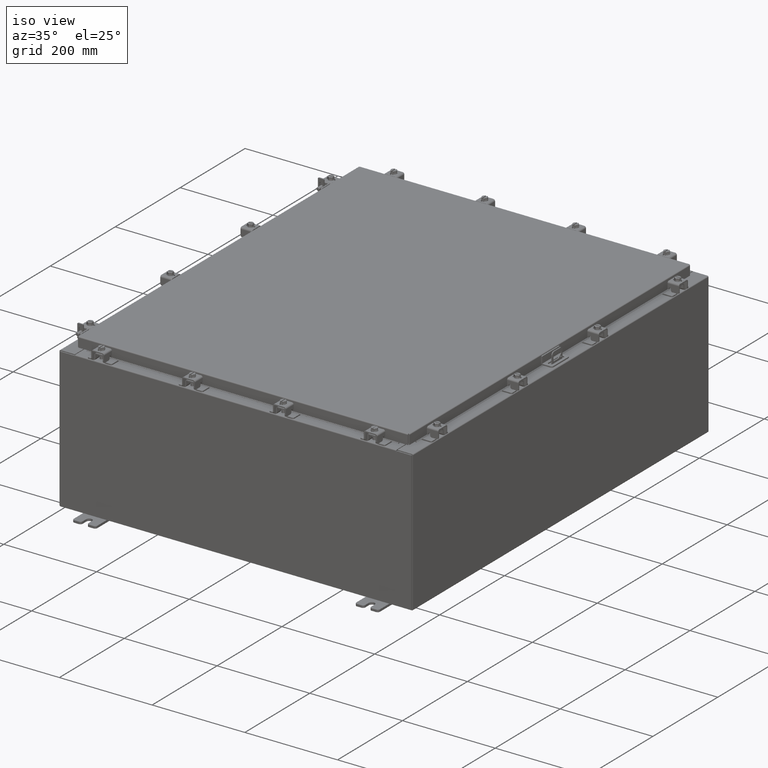
[diagram: clean part render]
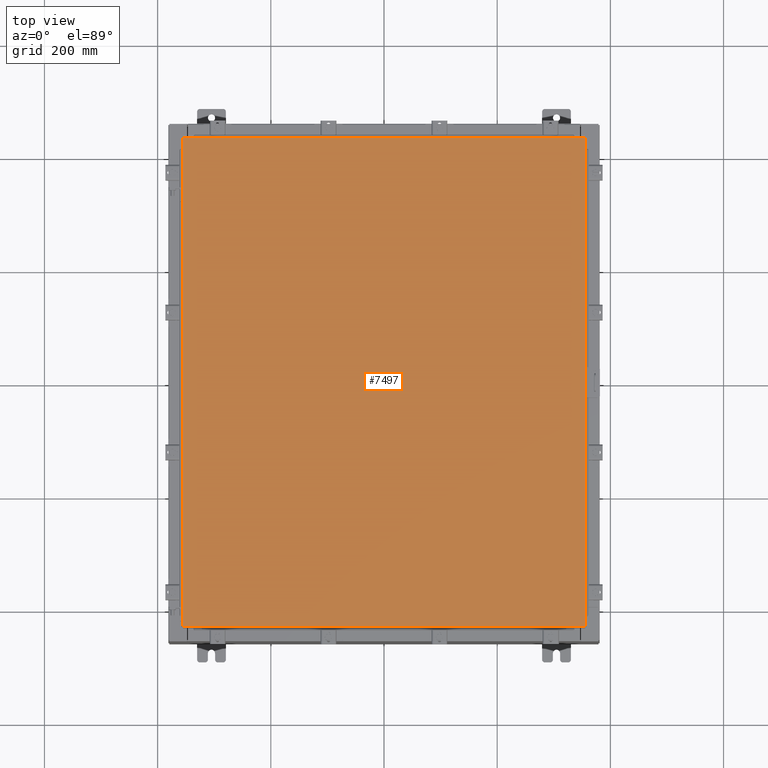
[diagram: tour spotlight — one face highlighted and labeled with its STEP entity id]
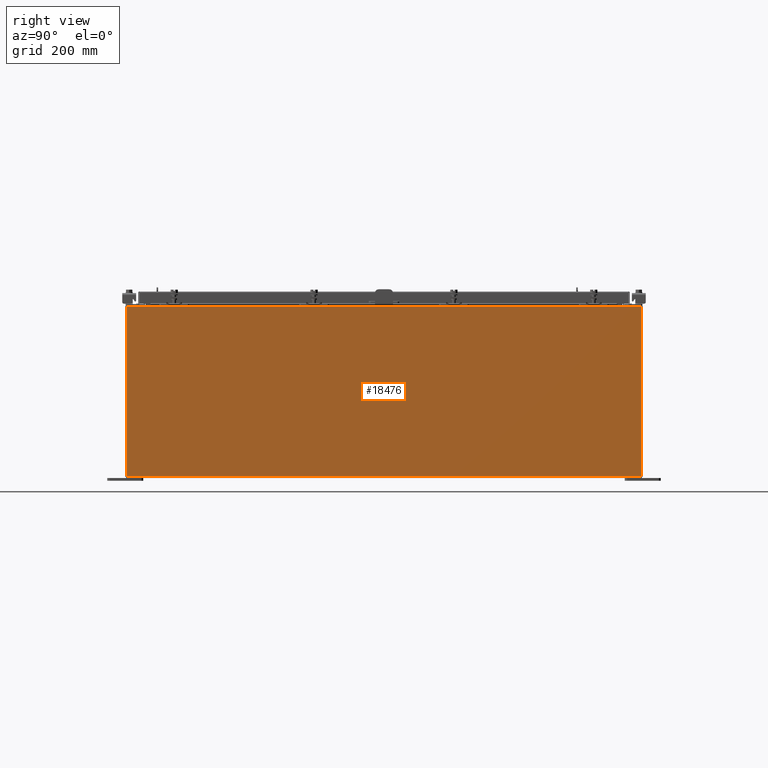
[diagram: tour spotlight — one face highlighted and labeled with its STEP entity id]
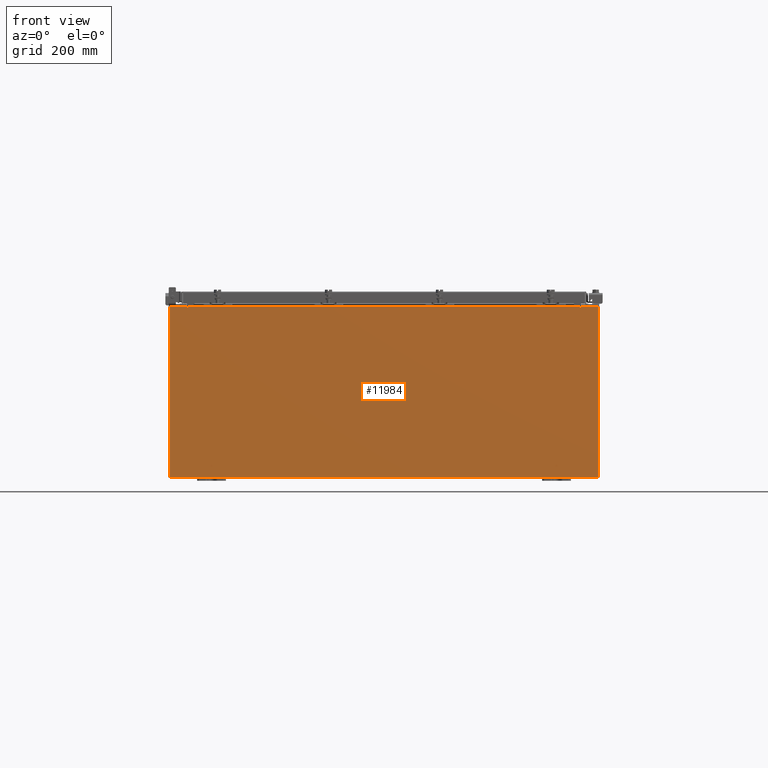
[diagram: tour spotlight — one face highlighted and labeled with its STEP entity id]
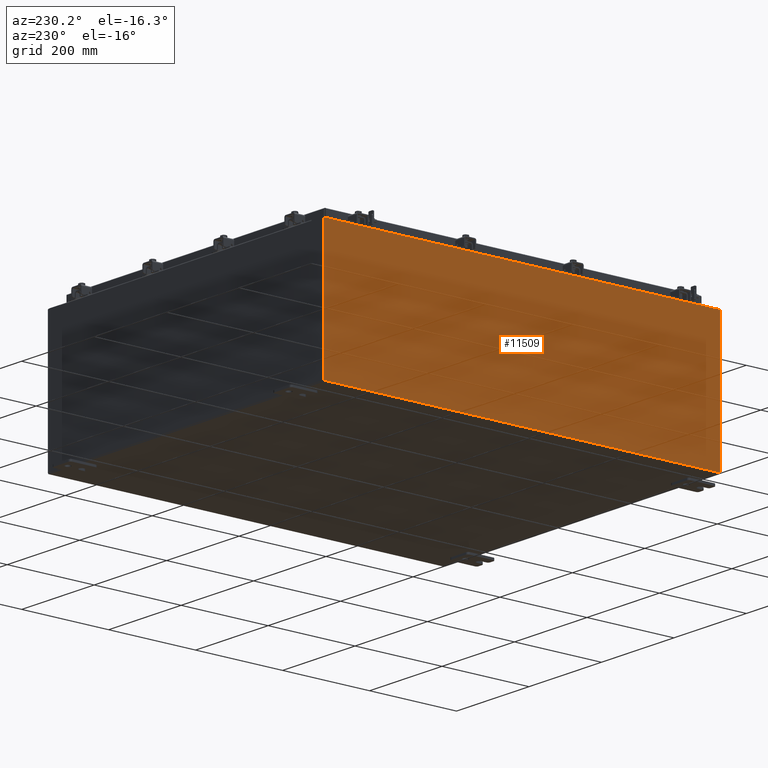
[diagram: tour spotlight — one face highlighted and labeled with its STEP entity id]
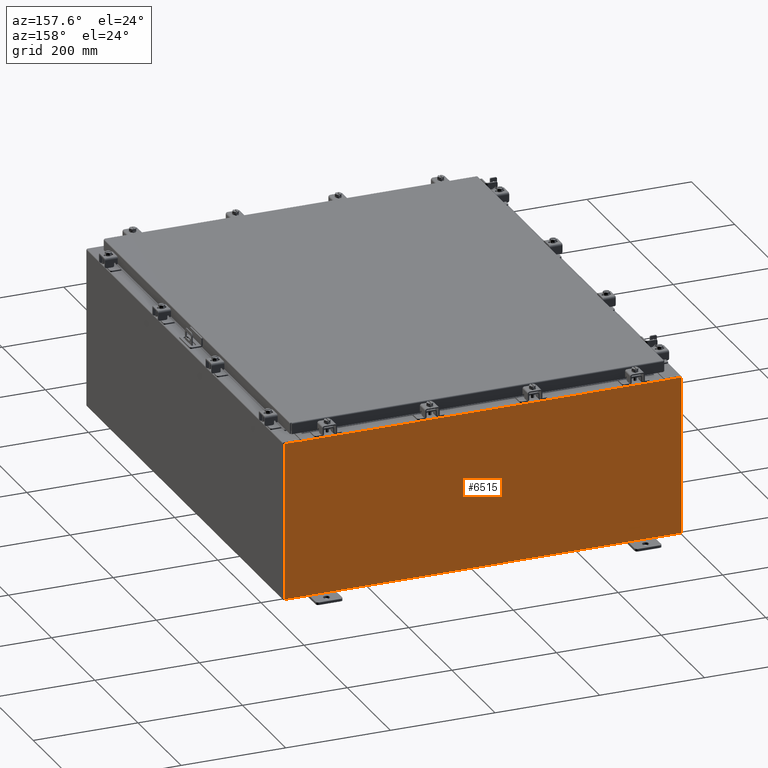
[diagram: tour spotlight — one face highlighted and labeled with its STEP entity id]
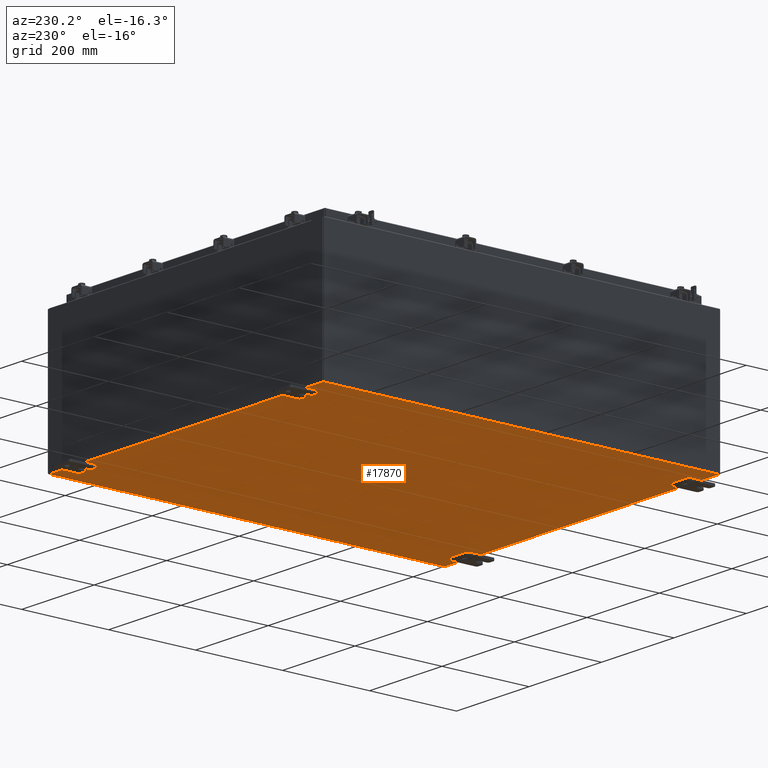
[diagram: tour spotlight — one face highlighted and labeled with its STEP entity id]
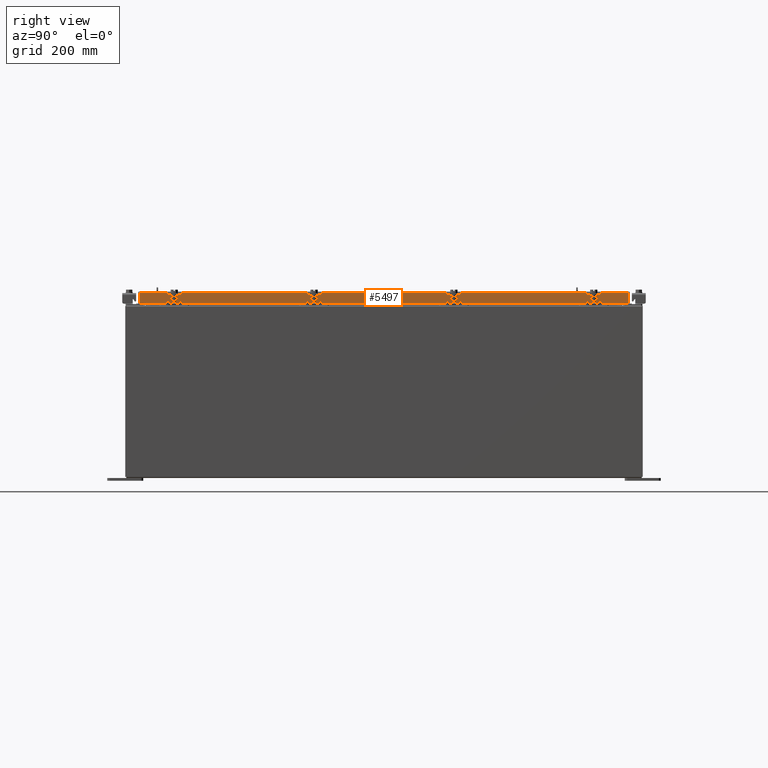
[diagram: tour spotlight — one face highlighted and labeled with its STEP entity id]
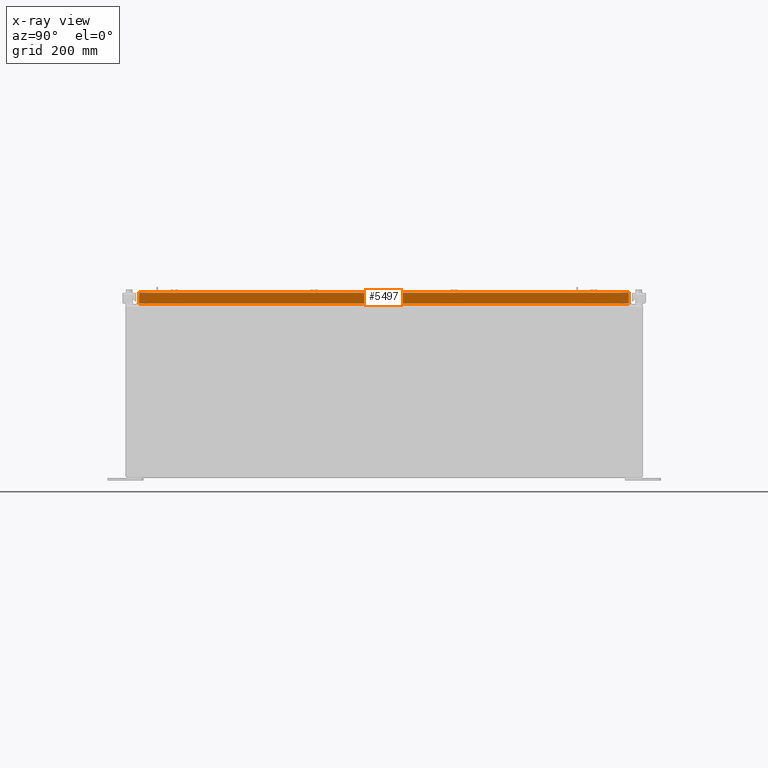
[diagram: x-ray of the same camera — body ghosted, this tour face saturated]
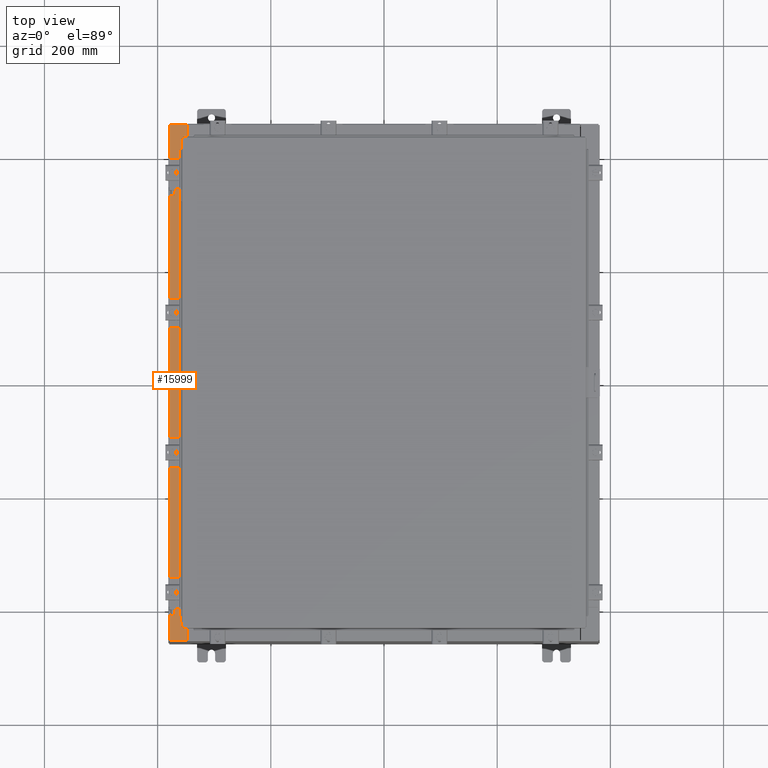
[diagram: tour spotlight — one face highlighted and labeled with its STEP entity id]
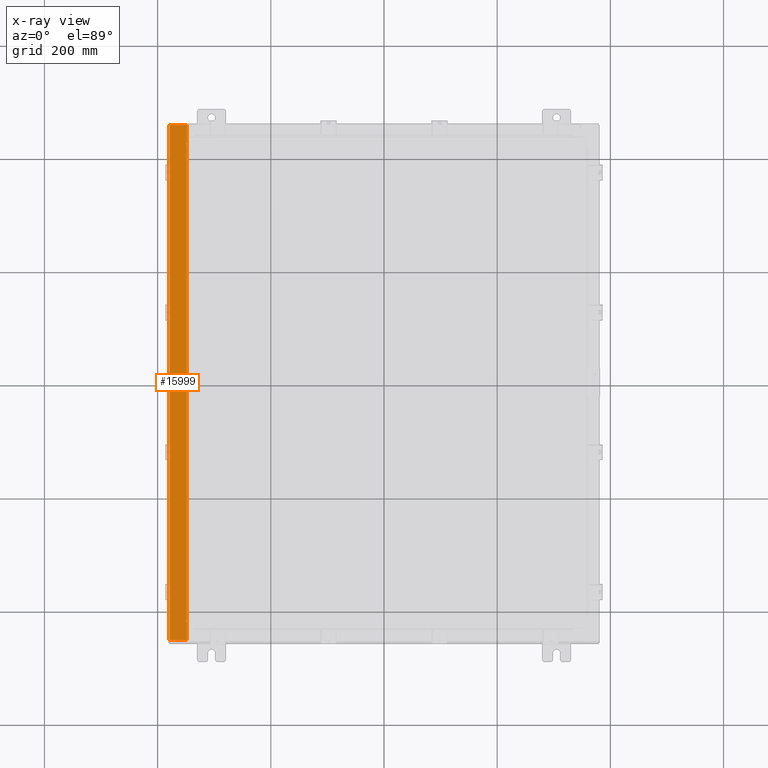
[diagram: x-ray of the same camera — body ghosted, this tour face saturated]
A machine part: a face-by-face anatomy tour. The part has 2711 B-rep faces; the first image is the clean iso view, then the 8 largest visible faces are spotlighted one at a time (largest first), each with its STEP entity span.

Face 1 — top view, entity #7497. In plain terms, the highlighted planar face has unit normal (0, 0, -1).
Definition (entity closure, byte-faithful):
#1119 = EDGE_CURVE ( 'NONE', #17650, #3678, #22664, .T. ) ;
#1445 = CARTESIAN_POINT ( 'NONE',  ( -13.99029999999999800, -17.00630000000000300, -2.048885995248197400E-016 ) ) ;
#2028 = VECTOR ( 'NONE', #16051, 39.37007874015748100 ) ;
#2917 = EDGE_LOOP ( 'NONE', ( #17117, #23362, #24165, #11008 ) ) ;
#3241 = EDGE_CURVE ( 'NONE', #13305, #17650, #3901, .T. ) ;
#3346 = DIRECTION ( 'NONE',  ( 1.000000000000000000, -0.0000000000000000000, -0.0000000000000000000 ) ) ;
#3678 = VERTEX_POINT ( 'NONE', #9598 ) ;
#3901 = LINE ( 'NONE', #1445, #17896 ) ;
#5405 = EDGE_CURVE ( 'NONE', #15429, #13305, #16643, .T. ) ;
#5482 = CARTESIAN_POINT ( 'NONE',  ( -13.99029999999999800, -17.00630000000000300, -2.048885995248197400E-016 ) ) ;
#6433 = DIRECTION ( 'NONE',  ( 0.0000000000000000000, 0.0000000000000000000, -1.000000000000000000 ) ) ;
#7497 = ADVANCED_FACE ( 'NONE', ( #14294 ), #15968, .F. ) ;
#8358 = DIRECTION ( 'NONE',  ( 0.0000000000000000000, 1.000000000000000000, 0.0000000000000000000 ) ) ;
#8542 = CARTESIAN_POINT ( 'NONE',  ( 13.99029999999999600, 17.00629999999999600, 8.878505979408856000E-016 ) ) ;
#8904 = LINE ( 'NONE', #8542, #23438 ) ;
#9598 = CARTESIAN_POINT ( 'NONE',  ( 13.99029999999999600, 17.00629999999999600, 8.878505979408856000E-016 ) ) ;
#9837 = CARTESIAN_POINT ( 'NONE',  ( -13.99030000000000000, 17.00630000000000000, -2.048885995248197400E-016 ) ) ;
#10551 = DIRECTION ( 'NONE',  ( -1.000000000000000000, -0.0000000000000000000, -0.0000000000000000000 ) ) ;
#11008 = ORIENTED_EDGE ( 'NONE', *, *, #5405, .T. ) ;
#13305 = VERTEX_POINT ( 'NONE', #5482 ) ;
#14294 = FACE_OUTER_BOUND ( 'NONE', #2917, .T. ) ;
#14747 = CARTESIAN_POINT ( 'NONE',  ( 13.99029999999999800, -17.00630000000000700, -2.048885995248197400E-016 ) ) ;
#15429 = VERTEX_POINT ( 'NONE', #9837 ) ;
#15968 = PLANE ( 'NONE',  #22281 ) ;
#16051 = DIRECTION ( 'NONE',  ( 0.0000000000000000000, -1.000000000000000000, 0.0000000000000000000 ) ) ;
#16643 = LINE ( 'NONE', #21631, #2028 ) ;
#17076 = VECTOR ( 'NONE', #8358, 39.37007874015748100 ) ;
#17117 = ORIENTED_EDGE ( 'NONE', *, *, #3241, .T. ) ;
#17650 = VERTEX_POINT ( 'NONE', #14747 ) ;
#17896 = VECTOR ( 'NONE', #3346, 39.37007874015748100 ) ;
#18240 = EDGE_CURVE ( 'NONE', #3678, #15429, #8904, .T. ) ;
#19741 = DIRECTION ( 'NONE',  ( -1.000000000000000000, 0.0000000000000000000, -0.0000000000000000000 ) ) ;
#21547 = CARTESIAN_POINT ( 'NONE',  ( 0.0000000000000000000, 0.0000000000000000000, 0.0000000000000000000 ) ) ;
#21572 = CARTESIAN_POINT ( 'NONE',  ( 13.99029999999999800, -17.00630000000000700, -2.048885995248197400E-016 ) ) ;
#21631 = CARTESIAN_POINT ( 'NONE',  ( -13.99030000000000000, 17.00630000000000000, -2.048885995248197400E-016 ) ) ;
#22281 = AXIS2_PLACEMENT_3D ( 'NONE', #21547, #6433, #19741 ) ;
#22664 = LINE ( 'NONE', #21572, #17076 ) ;
#23362 = ORIENTED_EDGE ( 'NONE', *, *, #1119, .T. ) ;
#23438 = VECTOR ( 'NONE', #10551, 39.37007874015748100 ) ;
#24165 = ORIENTED_EDGE ( 'NONE', *, *, #18240, .T. ) ;

Face 2 — right view, entity #18476. In plain terms, the highlighted planar face has unit normal (-1, 0, 0).
Definition (entity closure, byte-faithful):
#367 = LINE ( 'NONE', #20173, #19368 ) ;
#2239 = VECTOR ( 'NONE', #6744, 39.37007874015748100 ) ;
#3061 = DIRECTION ( 'NONE',  ( -3.482016343714355500E-015, 0.0000000000000000000, -1.000000000000000000 ) ) ;
#3632 = EDGE_CURVE ( 'NONE', #15711, #14781, #21399, .T. ) ;
#3698 = CARTESIAN_POINT ( 'NONE',  ( 15.00000000000004100, 17.92530000000000000, 11.83760000000000000 ) ) ;
#3977 = CARTESIAN_POINT ( 'NONE',  ( 14.99999999999999800, 0.0000000000000000000, -5.245148147835385400E-014 ) ) ;
#5709 = EDGE_LOOP ( 'NONE', ( #24414, #21190, #6187, #20843 ) ) ;
#5879 = DIRECTION ( 'NONE',  ( -1.000000000000000000, 0.0000000000000000000, 3.482016343714355100E-015 ) ) ;
#6187 = ORIENTED_EDGE ( 'NONE', *, *, #14457, .F. ) ;
#6744 = DIRECTION ( 'NONE',  ( 3.482016343714355500E-015, -1.832640180902292400E-016, 1.000000000000000000 ) ) ;
#6997 = DIRECTION ( 'NONE',  ( 2.122662239958547800E-031, -1.000000000000000000, 6.096072018129156600E-017 ) ) ;
#7429 = VECTOR ( 'NONE', #7505, 39.37007874015748100 ) ;
#7505 = DIRECTION ( 'NONE',  ( -0.0000000000000000000, -1.000000000000000000, -0.0000000000000000000 ) ) ;
#9031 = VERTEX_POINT ( 'NONE', #13885 ) ;
#9307 = VECTOR ( 'NONE', #6997, 39.37007874015748100 ) ;
#9797 = FACE_OUTER_BOUND ( 'NONE', #5709, .T. ) ;
#10495 = CARTESIAN_POINT ( 'NONE',  ( 14.99999999999999800, -17.92530000000000000, 0.01300000000000010700 ) ) ;
#10512 = LINE ( 'NONE', #16523, #9307 ) ;
#12428 = CARTESIAN_POINT ( 'NONE',  ( 14.99999999999999800, 17.92530000000000000, -4.917326388595673900E-014 ) ) ;
#13642 = CARTESIAN_POINT ( 'NONE',  ( 15.00000000000004100, -17.92530000000000000, 11.83760000000000000 ) ) ;
#13885 = CARTESIAN_POINT ( 'NONE',  ( 14.99999999999999800, 17.92530000000000000, 0.01299999999999792100 ) ) ;
#14457 = EDGE_CURVE ( 'NONE', #9031, #15703, #10512, .T. ) ;
#14781 = VERTEX_POINT ( 'NONE', #13642 ) ;
#15407 = PLANE ( 'NONE',  #16974 ) ;
#15703 = VERTEX_POINT ( 'NONE', #10495 ) ;
#15711 = VERTEX_POINT ( 'NONE', #16266 ) ;
#16192 = EDGE_CURVE ( 'NONE', #14781, #15703, #367, .T. ) ;
#16266 = CARTESIAN_POINT ( 'NONE',  ( 15.00000000000004100, 17.92530000000000000, 11.83760000000000000 ) ) ;
#16523 = CARTESIAN_POINT ( 'NONE',  ( 14.99999999999999800, -17.92530000000000000, 0.01300000000000010700 ) ) ;
#16850 = LINE ( 'NONE', #12428, #2239 ) ;
#16974 = AXIS2_PLACEMENT_3D ( 'NONE', #3977, #5879, #19185 ) ;
#18476 = ADVANCED_FACE ( 'NONE', ( #9797 ), #15407, .F. ) ;
#19185 = DIRECTION ( 'NONE',  ( 3.482016343714355100E-015, 0.0000000000000000000, 1.000000000000000000 ) ) ;
#19368 = VECTOR ( 'NONE', #3061, 39.37007874015748100 ) ;
#20173 = CARTESIAN_POINT ( 'NONE',  ( 14.99999999999999800, -17.92530000000000000, -5.245148147835385400E-014 ) ) ;
#20843 = ORIENTED_EDGE ( 'NONE', *, *, #21395, .T. ) ;
#21190 = ORIENTED_EDGE ( 'NONE', *, *, #16192, .T. ) ;
#21395 = EDGE_CURVE ( 'NONE', #9031, #15711, #16850, .T. ) ;
#21399 = LINE ( 'NONE', #3698, #7429 ) ;
#24414 = ORIENTED_EDGE ( 'NONE', *, *, #3632, .T. ) ;

Face 3 — front view, entity #11984. In plain terms, the highlighted planar face has unit normal (-0, 1, -0).
Definition (entity closure, byte-faithful):
#126 = VERTEX_POINT ( 'NONE', #3289 ) ;
#401 = VERTEX_POINT ( 'NONE', #10965 ) ;
#579 = CARTESIAN_POINT ( 'NONE',  ( 13.63720000000000400, 0.0000000000000000000, 5.874949999999999200 ) ) ;
#662 = CARTESIAN_POINT ( 'NONE',  ( 14.92530000000000200, 0.0000000000000000000, -5.925300000000001800 ) ) ;
#714 = VERTEX_POINT ( 'NONE', #4254 ) ;
#788 = VERTEX_POINT ( 'NONE', #16758 ) ;
#1053 = VERTEX_POINT ( 'NONE', #662 ) ;
#1133 = LINE ( 'NONE', #1668, #10653 ) ;
#1151 = DIRECTION ( 'NONE',  ( 0.0000000000000000000, 0.0000000000000000000, 1.000000000000000000 ) ) ;
#1473 = LINE ( 'NONE', #7473, #16681 ) ;
#1642 = CARTESIAN_POINT ( 'NONE',  ( -14.92529999999999800, 0.0000000000000000000, 5.925299999999999100 ) ) ;
#1668 = CARTESIAN_POINT ( 'NONE',  ( 14.92530000000000200, 0.0000000000000000000, 5.925299999999999100 ) ) ;
#1761 = DIRECTION ( 'NONE',  ( 0.0000000000000000000, 0.0000000000000000000, 1.000000000000000000 ) ) ;
#1848 = ORIENTED_EDGE ( 'NONE', *, *, #10099, .T. ) ;
#2415 = CARTESIAN_POINT ( 'NONE',  ( 0.0000000000000000000, 0.0000000000000000000, 0.0000000000000000000 ) ) ;
#2591 = EDGE_CURVE ( 'NONE', #16535, #126, #4775, .T. ) ;
#2612 = CIRCLE ( 'NONE', #8217, 0.01867499999999949400 ) ;
#2621 = DIRECTION ( 'NONE',  ( -0.0000000000000000000, 1.000000000000000000, -0.0000000000000000000 ) ) ;
#2712 = VECTOR ( 'NONE', #11866, 39.37007874015748100 ) ;
#3289 = CARTESIAN_POINT ( 'NONE',  ( -13.67454999999999500, 0.0000000000000000000, 5.925299999999999100 ) ) ;
#3543 = DIRECTION ( 'NONE',  ( 1.000000000000000000, 0.0000000000000000000, 0.0000000000000000000 ) ) ;
#3562 = DIRECTION ( 'NONE',  ( 0.0000000000000000000, 0.0000000000000000000, -1.000000000000000000 ) ) ;
#3755 = EDGE_CURVE ( 'NONE', #788, #401, #13420, .T. ) ;
#4254 = CARTESIAN_POINT ( 'NONE',  ( 13.67455000000000400, 0.0000000000000000000, 5.925299999999999100 ) ) ;
#4447 = EDGE_CURVE ( 'NONE', #9335, #126, #1473, .T. ) ;
#4775 = LINE ( 'NONE', #1642, #24355 ) ;
#5187 = DIRECTION ( 'NONE',  ( -1.000000000000000000, -0.0000000000000000000, -0.0000000000000000000 ) ) ;
#5389 = EDGE_CURVE ( 'NONE', #401, #9335, #2612, .T. ) ;
#5990 = ORIENTED_EDGE ( 'NONE', *, *, #5389, .F. ) ;
#6036 = ORIENTED_EDGE ( 'NONE', *, *, #10604, .F. ) ;
#6396 = VERTEX_POINT ( 'NONE', #579 ) ;
#6397 = CIRCLE ( 'NONE', #8562, 0.01867499999999949400 ) ;
#6628 = DIRECTION ( 'NONE',  ( -0.0000000000000000000, 1.000000000000000000, -0.0000000000000000000 ) ) ;
#7189 = ORIENTED_EDGE ( 'NONE', *, *, #15458, .T. ) ;
#7473 = CARTESIAN_POINT ( 'NONE',  ( -13.67454999999999500, -0.0000000000000000000, 0.0000000000000000000 ) ) ;
#7756 = VERTEX_POINT ( 'NONE', #18587 ) ;
#8217 = AXIS2_PLACEMENT_3D ( 'NONE', #14022, #2621, #15971 ) ;
#8562 = AXIS2_PLACEMENT_3D ( 'NONE', #18064, #6628, #19917 ) ;
#8572 = DIRECTION ( 'NONE',  ( -0.0000000000000000000, -0.0000000000000000000, 1.000000000000000000 ) ) ;
#8581 = ORIENTED_EDGE ( 'NONE', *, *, #22269, .F. ) ;
#8864 = DIRECTION ( 'NONE',  ( 1.000000000000000000, 0.0000000000000000000, 0.0000000000000000000 ) ) ;
#9072 = ORIENTED_EDGE ( 'NONE', *, *, #22021, .F. ) ;
#9312 = EDGE_CURVE ( 'NONE', #788, #23890, #23707, .T. ) ;
#9335 = VERTEX_POINT ( 'NONE', #20225 ) ;
#9840 = CARTESIAN_POINT ( 'NONE',  ( -13.63719999999999600, -0.0000000000000000000, 0.0000000000000000000 ) ) ;
#9919 = CARTESIAN_POINT ( 'NONE',  ( -14.92529999999999800, 0.0000000000000000000, 5.925299999999999100 ) ) ;
#10064 = PLANE ( 'NONE',  #12194 ) ;
#10099 = EDGE_CURVE ( 'NONE', #13482, #1053, #1133, .T. ) ;
#10290 = VECTOR ( 'NONE', #5187, 39.37007874015748100 ) ;
#10338 = VECTOR ( 'NONE', #1151, 39.37007874015748100 ) ;
#10604 = EDGE_CURVE ( 'NONE', #6396, #23890, #21034, .T. ) ;
#10653 = VECTOR ( 'NONE', #3562, 39.37007874015748100 ) ;
#10777 = ORIENTED_EDGE ( 'NONE', *, *, #2591, .T. ) ;
#10965 = CARTESIAN_POINT ( 'NONE',  ( -13.63719999999999600, -0.0000000000000000000, 5.874949999999999200 ) ) ;
#11140 = ORIENTED_EDGE ( 'NONE', *, *, #3755, .F. ) ;
#11559 = CARTESIAN_POINT ( 'NONE',  ( -14.92529999999999800, 0.0000000000000000000, 5.925299999999999100 ) ) ;
#11649 = EDGE_CURVE ( 'NONE', #1053, #22633, #20387, .T. ) ;
#11731 = EDGE_LOOP ( 'NONE', ( #20907, #5990, #11140, #14571, #6036, #9072, #8581, #7189, #1848, #17122, #14085, #10777 ) ) ;
#11866 = DIRECTION ( 'NONE',  ( 1.000000000000000000, 0.0000000000000000000, 0.0000000000000000000 ) ) ;
#11984 = ADVANCED_FACE ( 'NONE', ( #23901 ), #10064, .F. ) ;
#11994 = DIRECTION ( 'NONE',  ( 0.0000000000000000000, -0.0000000000000000000, -1.000000000000000000 ) ) ;
#12194 = AXIS2_PLACEMENT_3D ( 'NONE', #2415, #23337, #11994 ) ;
#13420 = LINE ( 'NONE', #9840, #14005 ) ;
#13457 = LINE ( 'NONE', #9919, #2712 ) ;
#13482 = VERTEX_POINT ( 'NONE', #23227 ) ;
#14005 = VECTOR ( 'NONE', #23128, 39.37007874015748100 ) ;
#14022 = CARTESIAN_POINT ( 'NONE',  ( -13.65587499999999600, 0.0000000000000000000, 5.874949999999999200 ) ) ;
#14058 = CARTESIAN_POINT ( 'NONE',  ( 13.67454999999974600, -0.0000000000000000000, -5.935537951421777900E-013 ) ) ;
#14085 = ORIENTED_EDGE ( 'NONE', *, *, #15667, .T. ) ;
#14545 = CARTESIAN_POINT ( 'NONE',  ( -13.63719999999999800, 3.756290991288361700E-016, 5.912299999999999200 ) ) ;
#14571 = ORIENTED_EDGE ( 'NONE', *, *, #9312, .T. ) ;
#15458 = EDGE_CURVE ( 'NONE', #714, #13482, #13457, .T. ) ;
#15667 = EDGE_CURVE ( 'NONE', #22633, #16535, #18791, .T. ) ;
#15971 = DIRECTION ( 'NONE',  ( 0.0000000000000000000, 0.0000000000000000000, -1.000000000000000000 ) ) ;
#16011 = DIRECTION ( 'NONE',  ( -4.340572780400004900E-014, 0.0000000000000000000, -1.000000000000000000 ) ) ;
#16253 = LINE ( 'NONE', #14058, #20658 ) ;
#16535 = VERTEX_POINT ( 'NONE', #11559 ) ;
#16613 = CARTESIAN_POINT ( 'NONE',  ( -14.92529999999999800, 0.0000000000000000000, -5.925300000000001800 ) ) ;
#16681 = VECTOR ( 'NONE', #1761, 39.37007874015748100 ) ;
#16758 = CARTESIAN_POINT ( 'NONE',  ( -13.63719999999999600, 3.756290991288361700E-016, 5.912299999999999200 ) ) ;
#16825 = CARTESIAN_POINT ( 'NONE',  ( -14.92529999999999800, 0.0000000000000000000, -5.925300000000001800 ) ) ;
#17007 = CARTESIAN_POINT ( 'NONE',  ( 13.63720000000000400, 0.0000000000000000000, 5.912299999999999200 ) ) ;
#17122 = ORIENTED_EDGE ( 'NONE', *, *, #11649, .T. ) ;
#18064 = CARTESIAN_POINT ( 'NONE',  ( 13.65587500000000200, 0.0000000000000000000, 5.874949999999999200 ) ) ;
#18587 = CARTESIAN_POINT ( 'NONE',  ( 13.67455000000000200, 0.0000000000000000000, 5.874949999999999200 ) ) ;
#18714 = VECTOR ( 'NONE', #8864, 39.37007874015748100 ) ;
#18791 = LINE ( 'NONE', #21851, #23786 ) ;
#19917 = DIRECTION ( 'NONE',  ( 0.0000000000000000000, 0.0000000000000000000, -1.000000000000000000 ) ) ;
#20225 = CARTESIAN_POINT ( 'NONE',  ( -13.67454999999999500, 0.0000000000000000000, 5.874949999999999200 ) ) ;
#20387 = LINE ( 'NONE', #16613, #10290 ) ;
#20658 = VECTOR ( 'NONE', #16011, 39.37007874015748100 ) ;
#20907 = ORIENTED_EDGE ( 'NONE', *, *, #4447, .F. ) ;
#21034 = LINE ( 'NONE', #21965, #10338 ) ;
#21851 = CARTESIAN_POINT ( 'NONE',  ( -14.92529999999999800, 0.0000000000000000000, 5.925299999999999100 ) ) ;
#21965 = CARTESIAN_POINT ( 'NONE',  ( 13.63720000000000400, 0.0000000000000000000, 0.0000000000000000000 ) ) ;
#22021 = EDGE_CURVE ( 'NONE', #7756, #6396, #6397, .T. ) ;
#22269 = EDGE_CURVE ( 'NONE', #714, #7756, #16253, .T. ) ;
#22633 = VERTEX_POINT ( 'NONE', #16825 ) ;
#23128 = DIRECTION ( 'NONE',  ( 0.0000000000000000000, 0.0000000000000000000, -1.000000000000000000 ) ) ;
#23227 = CARTESIAN_POINT ( 'NONE',  ( 14.92530000000000200, 0.0000000000000000000, 5.925299999999999100 ) ) ;
#23337 = DIRECTION ( 'NONE',  ( 0.0000000000000000000, -1.000000000000000000, 0.0000000000000000000 ) ) ;
#23707 = LINE ( 'NONE', #14545, #18714 ) ;
#23786 = VECTOR ( 'NONE', #8572, 39.37007874015748100 ) ;
#23890 = VERTEX_POINT ( 'NONE', #17007 ) ;
#23901 = FACE_OUTER_BOUND ( 'NONE', #11731, .T. ) ;
#24355 = VECTOR ( 'NONE', #3543, 39.37007874015748100 ) ;

Face 4 — auxiliary view, entity #11509. In plain terms, the highlighted planar face has unit normal (1, 0, 0).
Definition (entity closure, byte-faithful):
#258 = ORIENTED_EDGE ( 'NONE', *, *, #5188, .T. ) ;
#1963 = CARTESIAN_POINT ( 'NONE',  ( -15.00000000000000400, 17.92530000000000000, 0.01300000000000010700 ) ) ;
#3760 = FACE_OUTER_BOUND ( 'NONE', #21019, .T. ) ;
#3930 = CARTESIAN_POINT ( 'NONE',  ( -15.00000000000000400, 17.92530000000000000, 0.01300000000000010700 ) ) ;
#4136 = LINE ( 'NONE', #5715, #8571 ) ;
#5188 = EDGE_CURVE ( 'NONE', #19456, #9591, #4136, .T. ) ;
#5593 = PLANE ( 'NONE',  #22015 ) ;
#5715 = CARTESIAN_POINT ( 'NONE',  ( -15.00000000000000400, 17.92530000000000000, -5.245148147835385400E-014 ) ) ;
#5758 = VERTEX_POINT ( 'NONE', #13906 ) ;
#7897 = EDGE_CURVE ( 'NONE', #22005, #9591, #16417, .T. ) ;
#8571 = VECTOR ( 'NONE', #17231, 39.37007874015748100 ) ;
#9323 = CARTESIAN_POINT ( 'NONE',  ( -15.00000000000000400, 0.0000000000000000000, -5.245148147835385400E-014 ) ) ;
#9591 = VERTEX_POINT ( 'NONE', #1963 ) ;
#10304 = CARTESIAN_POINT ( 'NONE',  ( -15.00000000000000400, -17.92530000000000000, 0.01300000000000010700 ) ) ;
#11334 = DIRECTION ( 'NONE',  ( 3.482016343714355100E-015, 0.0000000000000000000, -1.000000000000000000 ) ) ;
#11344 = VECTOR ( 'NONE', #15363, 39.37007874015748100 ) ;
#11509 = ADVANCED_FACE ( 'NONE', ( #3760 ), #5593, .F. ) ;
#11603 = DIRECTION ( 'NONE',  ( -3.482016343714355500E-015, 0.0000000000000000000, 1.000000000000000000 ) ) ;
#11876 = VECTOR ( 'NONE', #11603, 39.37007874015748100 ) ;
#13906 = CARTESIAN_POINT ( 'NONE',  ( -15.00000000000004400, -17.92530000000000000, 11.83760000000000000 ) ) ;
#14308 = CARTESIAN_POINT ( 'NONE',  ( -15.00000000000004400, -17.92530000000000000, 11.83760000000000000 ) ) ;
#15363 = DIRECTION ( 'NONE',  ( -0.0000000000000000000, 1.000000000000000000, -0.0000000000000000000 ) ) ;
#16417 = LINE ( 'NONE', #3930, #11344 ) ;
#16426 = CARTESIAN_POINT ( 'NONE',  ( -15.00000000000004400, 17.92530000000000000, 11.83760000000000000 ) ) ;
#17231 = DIRECTION ( 'NONE',  ( 3.482016343714355500E-015, 0.0000000000000000000, -1.000000000000000000 ) ) ;
#18904 = VECTOR ( 'NONE', #21832, 39.37007874015748100 ) ;
#19154 = CARTESIAN_POINT ( 'NONE',  ( -15.00000000000000400, -17.92530000000000000, -5.245148147835385400E-014 ) ) ;
#19173 = EDGE_CURVE ( 'NONE', #22005, #5758, #21922, .T. ) ;
#19456 = VERTEX_POINT ( 'NONE', #16426 ) ;
#19488 = LINE ( 'NONE', #14308, #18904 ) ;
#21019 = EDGE_LOOP ( 'NONE', ( #23994, #258, #21725, #23556 ) ) ;
#21725 = ORIENTED_EDGE ( 'NONE', *, *, #7897, .F. ) ;
#21832 = DIRECTION ( 'NONE',  ( 0.0000000000000000000, 1.000000000000000000, 0.0000000000000000000 ) ) ;
#21922 = LINE ( 'NONE', #19154, #11876 ) ;
#22005 = VERTEX_POINT ( 'NONE', #10304 ) ;
#22015 = AXIS2_PLACEMENT_3D ( 'NONE', #9323, #22683, #11334 ) ;
#22361 = EDGE_CURVE ( 'NONE', #5758, #19456, #19488, .T. ) ;
#22683 = DIRECTION ( 'NONE',  ( 1.000000000000000000, 0.0000000000000000000, 3.482016343714355100E-015 ) ) ;
#23556 = ORIENTED_EDGE ( 'NONE', *, *, #19173, .T. ) ;
#23994 = ORIENTED_EDGE ( 'NONE', *, *, #22361, .T. ) ;

Face 5 — auxiliary view, entity #6515. In plain terms, the highlighted planar face has unit normal (0, -1, 0).
Definition (entity closure, byte-faithful):
#63 = LINE ( 'NONE', #7529, #18472 ) ;
#226 = CARTESIAN_POINT ( 'NONE',  ( 13.65587500000000200, 0.0000000000000000000, 5.874949999999999200 ) ) ;
#471 = AXIS2_PLACEMENT_3D ( 'NONE', #23856, #12533, #1145 ) ;
#591 = DIRECTION ( 'NONE',  ( 0.0000000000000000000, 0.0000000000000000000, -1.000000000000000000 ) ) ;
#992 = VERTEX_POINT ( 'NONE', #19445 ) ;
#1084 = ORIENTED_EDGE ( 'NONE', *, *, #21331, .F. ) ;
#1106 = ORIENTED_EDGE ( 'NONE', *, *, #9886, .F. ) ;
#1145 = DIRECTION ( 'NONE',  ( 0.0000000000000000000, 0.0000000000000000000, -1.000000000000000000 ) ) ;
#1234 = VERTEX_POINT ( 'NONE', #21896 ) ;
#1860 = DIRECTION ( 'NONE',  ( 0.0000000000000000000, 0.0000000000000000000, -1.000000000000000000 ) ) ;
#2785 = VERTEX_POINT ( 'NONE', #9935 ) ;
#3013 = FACE_OUTER_BOUND ( 'NONE', #14355, .T. ) ;
#4027 = ORIENTED_EDGE ( 'NONE', *, *, #21017, .F. ) ;
#4179 = VECTOR ( 'NONE', #9085, 39.37007874015748100 ) ;
#4702 = LINE ( 'NONE', #6668, #14238 ) ;
#4796 = VERTEX_POINT ( 'NONE', #14307 ) ;
#4994 = VECTOR ( 'NONE', #591, 39.37007874015748100 ) ;
#5569 = CARTESIAN_POINT ( 'NONE',  ( -14.92529999999999800, 0.0000000000000000000, 5.925299999999999100 ) ) ;
#6199 = CARTESIAN_POINT ( 'NONE',  ( 14.92530000000000200, 0.0000000000000000000, 5.925299999999999100 ) ) ;
#6251 = ORIENTED_EDGE ( 'NONE', *, *, #13719, .F. ) ;
#6429 = ORIENTED_EDGE ( 'NONE', *, *, #10835, .T. ) ;
#6515 = ADVANCED_FACE ( 'NONE', ( #3013 ), #19975, .F. ) ;
#6668 = CARTESIAN_POINT ( 'NONE',  ( -13.63719999999999600, -0.0000000000000000000, 0.0000000000000000000 ) ) ;
#7190 = ORIENTED_EDGE ( 'NONE', *, *, #19292, .T. ) ;
#7246 = EDGE_CURVE ( 'NONE', #24116, #992, #63, .T. ) ;
#7251 = DIRECTION ( 'NONE',  ( -4.340572780400004900E-014, 0.0000000000000000000, -1.000000000000000000 ) ) ;
#7441 = DIRECTION ( 'NONE',  ( 1.000000000000000000, 0.0000000000000000000, 0.0000000000000000000 ) ) ;
#7529 = CARTESIAN_POINT ( 'NONE',  ( -14.92529999999999800, 0.0000000000000000000, 5.925299999999999100 ) ) ;
#7801 = EDGE_CURVE ( 'NONE', #24116, #8458, #13127, .T. ) ;
#8045 = VECTOR ( 'NONE', #7251, 39.37007874015748100 ) ;
#8261 = EDGE_CURVE ( 'NONE', #8300, #4796, #24343, .T. ) ;
#8300 = VERTEX_POINT ( 'NONE', #22443 ) ;
#8311 = CARTESIAN_POINT ( 'NONE',  ( -14.92529999999999800, 0.0000000000000000000, -5.925300000000001800 ) ) ;
#8458 = VERTEX_POINT ( 'NONE', #21029 ) ;
#8569 = DIRECTION ( 'NONE',  ( 0.0000000000000000000, 0.0000000000000000000, 1.000000000000000000 ) ) ;
#8593 = CARTESIAN_POINT ( 'NONE',  ( 0.0000000000000000000, 0.0000000000000000000, 0.0000000000000000000 ) ) ;
#9085 = DIRECTION ( 'NONE',  ( -0.0000000000000000000, -0.0000000000000000000, 1.000000000000000000 ) ) ;
#9460 = VECTOR ( 'NONE', #10244, 39.37007874015748100 ) ;
#9886 = EDGE_CURVE ( 'NONE', #16717, #15145, #4702, .T. ) ;
#9935 = CARTESIAN_POINT ( 'NONE',  ( 13.63720000000000400, 0.0000000000000000000, 5.874949999999999200 ) ) ;
#10244 = DIRECTION ( 'NONE',  ( -1.000000000000000000, -0.0000000000000000000, -0.0000000000000000000 ) ) ;
#10354 = EDGE_CURVE ( 'NONE', #992, #10957, #19570, .T. ) ;
#10520 = DIRECTION ( 'NONE',  ( 0.0000000000000000000, -1.000000000000000000, 0.0000000000000000000 ) ) ;
#10619 = CARTESIAN_POINT ( 'NONE',  ( -13.63719999999999600, -0.0000000000000000000, 5.874949999999999200 ) ) ;
#10835 = EDGE_CURVE ( 'NONE', #16717, #15017, #15723, .T. ) ;
#10957 = VERTEX_POINT ( 'NONE', #13441 ) ;
#11002 = CARTESIAN_POINT ( 'NONE',  ( -14.92529999999999800, 0.0000000000000000000, 5.925299999999999100 ) ) ;
#12096 = VECTOR ( 'NONE', #7441, 39.37007874015748100 ) ;
#12345 = DIRECTION ( 'NONE',  ( 0.0000000000000000000, 0.0000000000000000000, -1.000000000000000000 ) ) ;
#12363 = VECTOR ( 'NONE', #8569, 39.37007874015748100 ) ;
#12446 = EDGE_CURVE ( 'NONE', #4796, #1234, #17183, .T. ) ;
#12533 = DIRECTION ( 'NONE',  ( -0.0000000000000000000, 1.000000000000000000, -0.0000000000000000000 ) ) ;
#13107 = CARTESIAN_POINT ( 'NONE',  ( -13.63719999999999800, 3.756290991288361700E-016, 5.912299999999999200 ) ) ;
#13127 = LINE ( 'NONE', #16779, #8045 ) ;
#13269 = DIRECTION ( 'NONE',  ( -0.0000000000000000000, 1.000000000000000000, -0.0000000000000000000 ) ) ;
#13441 = CARTESIAN_POINT ( 'NONE',  ( 14.92530000000000200, 0.0000000000000000000, -5.925300000000001800 ) ) ;
#13719 = EDGE_CURVE ( 'NONE', #15145, #18050, #23007, .T. ) ;
#13902 = CARTESIAN_POINT ( 'NONE',  ( -13.67454999999999500, 0.0000000000000000000, 5.874949999999999200 ) ) ;
#14238 = VECTOR ( 'NONE', #12345, 39.37007874015748100 ) ;
#14307 = CARTESIAN_POINT ( 'NONE',  ( -14.92529999999999800, 0.0000000000000000000, 5.925299999999999100 ) ) ;
#14355 = EDGE_LOOP ( 'NONE', ( #1084, #6251, #1106, #6429, #22792, #4027, #14907, #19435, #17623, #7190, #19627, #15369 ) ) ;
#14543 = LINE ( 'NONE', #8311, #9460 ) ;
#14907 = ORIENTED_EDGE ( 'NONE', *, *, #7801, .F. ) ;
#15017 = VERTEX_POINT ( 'NONE', #17947 ) ;
#15145 = VERTEX_POINT ( 'NONE', #10619 ) ;
#15256 = AXIS2_PLACEMENT_3D ( 'NONE', #226, #13269, #1860 ) ;
#15286 = AXIS2_PLACEMENT_3D ( 'NONE', #8593, #10520, #23761 ) ;
#15369 = ORIENTED_EDGE ( 'NONE', *, *, #12446, .T. ) ;
#15398 = VECTOR ( 'NONE', #21071, 39.37007874015748100 ) ;
#15723 = LINE ( 'NONE', #13107, #20719 ) ;
#15992 = LINE ( 'NONE', #22812, #15398 ) ;
#16717 = VERTEX_POINT ( 'NONE', #21549 ) ;
#16779 = CARTESIAN_POINT ( 'NONE',  ( 13.67454999999974600, -0.0000000000000000000, -5.935537951421777900E-013 ) ) ;
#16959 = DIRECTION ( 'NONE',  ( 1.000000000000000000, 0.0000000000000000000, 0.0000000000000000000 ) ) ;
#17183 = LINE ( 'NONE', #5569, #12096 ) ;
#17445 = LINE ( 'NONE', #19942, #12363 ) ;
#17623 = ORIENTED_EDGE ( 'NONE', *, *, #10354, .T. ) ;
#17947 = CARTESIAN_POINT ( 'NONE',  ( 13.63720000000000400, 0.0000000000000000000, 5.912299999999999200 ) ) ;
#18050 = VERTEX_POINT ( 'NONE', #13902 ) ;
#18472 = VECTOR ( 'NONE', #20820, 39.37007874015748100 ) ;
#19292 = EDGE_CURVE ( 'NONE', #10957, #8300, #14543, .T. ) ;
#19435 = ORIENTED_EDGE ( 'NONE', *, *, #7246, .T. ) ;
#19445 = CARTESIAN_POINT ( 'NONE',  ( 14.92530000000000200, 0.0000000000000000000, 5.925299999999999100 ) ) ;
#19570 = LINE ( 'NONE', #6199, #4994 ) ;
#19627 = ORIENTED_EDGE ( 'NONE', *, *, #8261, .T. ) ;
#19942 = CARTESIAN_POINT ( 'NONE',  ( -13.67454999999999500, -0.0000000000000000000, 0.0000000000000000000 ) ) ;
#19975 = PLANE ( 'NONE',  #15286 ) ;
#20525 = EDGE_CURVE ( 'NONE', #2785, #15017, #15992, .T. ) ;
#20719 = VECTOR ( 'NONE', #16959, 39.37007874015748100 ) ;
#20820 = DIRECTION ( 'NONE',  ( 1.000000000000000000, 0.0000000000000000000, 0.0000000000000000000 ) ) ;
#21017 = EDGE_CURVE ( 'NONE', #8458, #2785, #22149, .T. ) ;
#21029 = CARTESIAN_POINT ( 'NONE',  ( 13.67455000000000200, 0.0000000000000000000, 5.874949999999999200 ) ) ;
#21071 = DIRECTION ( 'NONE',  ( 0.0000000000000000000, 0.0000000000000000000, 1.000000000000000000 ) ) ;
#21331 = EDGE_CURVE ( 'NONE', #18050, #1234, #17445, .T. ) ;
#21500 = CARTESIAN_POINT ( 'NONE',  ( 13.67455000000000400, 0.0000000000000000000, 5.925299999999999100 ) ) ;
#21549 = CARTESIAN_POINT ( 'NONE',  ( -13.63719999999999600, 3.756290991288361700E-016, 5.912299999999999200 ) ) ;
#21896 = CARTESIAN_POINT ( 'NONE',  ( -13.67454999999999500, 0.0000000000000000000, 5.925299999999999100 ) ) ;
#22149 = CIRCLE ( 'NONE', #15256, 0.01867499999999949400 ) ;
#22443 = CARTESIAN_POINT ( 'NONE',  ( -14.92529999999999800, 0.0000000000000000000, -5.925300000000001800 ) ) ;
#22792 = ORIENTED_EDGE ( 'NONE', *, *, #20525, .F. ) ;
#22812 = CARTESIAN_POINT ( 'NONE',  ( 13.63720000000000400, 0.0000000000000000000, 0.0000000000000000000 ) ) ;
#23007 = CIRCLE ( 'NONE', #471, 0.01867499999999949400 ) ;
#23761 = DIRECTION ( 'NONE',  ( 0.0000000000000000000, -0.0000000000000000000, -1.000000000000000000 ) ) ;
#23856 = CARTESIAN_POINT ( 'NONE',  ( -13.65587499999999600, 0.0000000000000000000, 5.874949999999999200 ) ) ;
#24116 = VERTEX_POINT ( 'NONE', #21500 ) ;
#24343 = LINE ( 'NONE', #11002, #4179 ) ;

Face 6 — auxiliary view, entity #17870. In plain terms, the highlighted planar face has unit normal (0, 0, -1).
Definition (entity closure, byte-faithful):
#221 = PLANE ( 'NONE',  #20422 ) ;
#1284 = ORIENTED_EDGE ( 'NONE', *, *, #16729, .T. ) ;
#2528 = LINE ( 'NONE', #12741, #22126 ) ;
#3161 = VERTEX_POINT ( 'NONE', #18352 ) ;
#3457 = VECTOR ( 'NONE', #16748, 39.37007874015748100 ) ;
#3563 = LINE ( 'NONE', #4540, #18166 ) ;
#3998 = DIRECTION ( 'NONE',  ( -1.000000000000000000, 0.0000000000000000000, -0.0000000000000000000 ) ) ;
#4540 = CARTESIAN_POINT ( 'NONE',  ( 14.91229999999999800, 17.92530000000000000, -0.07470000000000234800 ) ) ;
#5435 = DIRECTION ( 'NONE',  ( -0.0000000000000000000, 1.000000000000000000, -0.0000000000000000000 ) ) ;
#6436 = DIRECTION ( 'NONE',  ( -0.0000000000000000000, -1.000000000000000000, 8.208677865577646300E-017 ) ) ;
#6528 = FACE_OUTER_BOUND ( 'NONE', #24130, .T. ) ;
#6771 = EDGE_CURVE ( 'NONE', #20327, #15547, #12842, .T. ) ;
#7761 = VECTOR ( 'NONE', #5435, 39.37007874015748100 ) ;
#8309 = CARTESIAN_POINT ( 'NONE',  ( -14.91230000000000200, 17.92530000000000000, -0.07470000000000015500 ) ) ;
#9733 = ORIENTED_EDGE ( 'NONE', *, *, #6771, .T. ) ;
#11072 = CARTESIAN_POINT ( 'NONE',  ( -15.00000000000000400, -17.92530000000000000, -0.07470000000000015500 ) ) ;
#11158 = ORIENTED_EDGE ( 'NONE', *, *, #21574, .F. ) ;
#12741 = CARTESIAN_POINT ( 'NONE',  ( -15.00000000000000400, 17.92530000000000000, -0.07470000000000015500 ) ) ;
#12842 = LINE ( 'NONE', #20541, #7761 ) ;
#13475 = ORIENTED_EDGE ( 'NONE', *, *, #22502, .F. ) ;
#15433 = DIRECTION ( 'NONE',  ( 0.0000000000000000000, 0.0000000000000000000, -1.000000000000000000 ) ) ;
#15547 = VERTEX_POINT ( 'NONE', #8309 ) ;
#16729 = EDGE_CURVE ( 'NONE', #3161, #17825, #3563, .T. ) ;
#16748 = DIRECTION ( 'NONE',  ( 1.000000000000000000, 0.0000000000000000000, 0.0000000000000000000 ) ) ;
#17825 = VERTEX_POINT ( 'NONE', #19047 ) ;
#17870 = ADVANCED_FACE ( 'NONE', ( #6528 ), #221, .T. ) ;
#18166 = VECTOR ( 'NONE', #6436, 39.37007874015748100 ) ;
#18352 = CARTESIAN_POINT ( 'NONE',  ( 14.91229999999999800, 17.92530000000000000, -0.07470000000000234800 ) ) ;
#19047 = CARTESIAN_POINT ( 'NONE',  ( 14.91229999999999800, -17.92530000000000000, -0.07470000000000015500 ) ) ;
#20253 = DIRECTION ( 'NONE',  ( -1.000000000000000000, -0.0000000000000000000, -0.0000000000000000000 ) ) ;
#20327 = VERTEX_POINT ( 'NONE', #24292 ) ;
#20422 = AXIS2_PLACEMENT_3D ( 'NONE', #22837, #15433, #3998 ) ;
#20541 = CARTESIAN_POINT ( 'NONE',  ( -14.91230000000000200, -17.92530000000000000, -0.07470000000000015500 ) ) ;
#21574 = EDGE_CURVE ( 'NONE', #20327, #17825, #23071, .T. ) ;
#22126 = VECTOR ( 'NONE', #20253, 39.37007874015748100 ) ;
#22502 = EDGE_CURVE ( 'NONE', #3161, #15547, #2528, .T. ) ;
#22837 = CARTESIAN_POINT ( 'NONE',  ( 0.0000000000000000000, 0.0000000000000000000, -0.07470000000000015500 ) ) ;
#23071 = LINE ( 'NONE', #11072, #3457 ) ;
#24130 = EDGE_LOOP ( 'NONE', ( #11158, #9733, #13475, #1284 ) ) ;
#24292 = CARTESIAN_POINT ( 'NONE',  ( -14.91230000000000200, -17.92530000000000000, -0.07470000000000015500 ) ) ;

Face 7 — right view, entity #5497. An x-ray twin of the same camera follows (body ghosted, this face saturated) — the face is partly hidden behind the body. In plain terms, the highlighted planar face has unit normal (1, 0, 0).
Definition (entity closure, byte-faithful):
#26 = ORIENTED_EDGE ( 'NONE', *, *, #5561, .T. ) ;
#447 = CARTESIAN_POINT ( 'NONE',  ( 14.07799999999999900, -17.09400000000000100, -0.8499999999999996400 ) ) ;
#485 = LINE ( 'NONE', #7138, #9366 ) ;
#767 = ORIENTED_EDGE ( 'NONE', *, *, #21140, .F. ) ;
#789 = EDGE_CURVE ( 'NONE', #9593, #10052, #7832, .T. ) ;
#1016 = ORIENTED_EDGE ( 'NONE', *, *, #21534, .F. ) ;
#1063 = DIRECTION ( 'NONE',  ( 2.818880942772360100E-015, 0.0000000000000000000, -1.000000000000000000 ) ) ;
#1095 = CARTESIAN_POINT ( 'NONE',  ( 14.07799999999999600, -16.25515786437626900, -0.8500000000000005300 ) ) ;
#1732 = LINE ( 'NONE', #447, #5596 ) ;
#2782 = CARTESIAN_POINT ( 'NONE',  ( 14.07799999999999800, 0.0000000000000000000, 3.994501956836086200E-014 ) ) ;
#3897 = VECTOR ( 'NONE', #15084, 39.37007874015748100 ) ;
#3919 = VERTEX_POINT ( 'NONE', #17912 ) ;
#4854 = VERTEX_POINT ( 'NONE', #1095 ) ;
#5497 = ADVANCED_FACE ( 'NONE', ( #16040 ), #10525, .T. ) ;
#5561 = EDGE_CURVE ( 'NONE', #10052, #17977, #24282, .T. ) ;
#5596 = VECTOR ( 'NONE', #6132, 39.37007874015748100 ) ;
#6132 = DIRECTION ( 'NONE',  ( 0.0000000000000000000, -1.000000000000000000, 0.0000000000000000000 ) ) ;
#7138 = CARTESIAN_POINT ( 'NONE',  ( 14.07799999999999600, 16.25515786437627200, -0.8500000000000005300 ) ) ;
#7832 = LINE ( 'NONE', #24240, #17385 ) ;
#9075 = DIRECTION ( 'NONE',  ( 0.0000000000000000000, -1.000000000000000000, 0.0000000000000000000 ) ) ;
#9366 = VECTOR ( 'NONE', #9075, 39.37007874015748100 ) ;
#9593 = VERTEX_POINT ( 'NONE', #19077 ) ;
#9833 = DIRECTION ( 'NONE',  ( 0.0000000000000000000, -1.000000000000000000, 0.0000000000000000000 ) ) ;
#10052 = VERTEX_POINT ( 'NONE', #18417 ) ;
#10321 = EDGE_CURVE ( 'NONE', #9593, #3919, #1732, .T. ) ;
#10525 = PLANE ( 'NONE',  #17192 ) ;
#11605 = CARTESIAN_POINT ( 'NONE',  ( 14.07799999999999900, -17.00515786437626900, -0.8499999999999996400 ) ) ;
#11839 = CARTESIAN_POINT ( 'NONE',  ( 14.07799999999999800, -17.00515786437627200, -0.08770000000000007000 ) ) ;
#12455 = DIRECTION ( 'NONE',  ( 1.000000000000000000, 0.0000000000000000000, 2.818880942772360100E-015 ) ) ;
#13679 = CARTESIAN_POINT ( 'NONE',  ( 14.07799999999999900, -17.09400000000000100, -0.8499999999999996400 ) ) ;
#14235 = VECTOR ( 'NONE', #15342, 39.37007874015748100 ) ;
#14472 = EDGE_LOOP ( 'NONE', ( #16841, #767, #1016, #17093, #23287, #26 ) ) ;
#14628 = LINE ( 'NONE', #17006, #3897 ) ;
#15084 = DIRECTION ( 'NONE',  ( -2.818880942772360500E-015, -6.982962677686269100E-015, 1.000000000000000000 ) ) ;
#15342 = DIRECTION ( 'NONE',  ( 0.0000000000000000000, -1.000000000000000000, 0.0000000000000000000 ) ) ;
#15367 = VECTOR ( 'NONE', #9833, 39.37007874015748100 ) ;
#15402 = VERTEX_POINT ( 'NONE', #11605 ) ;
#15925 = EDGE_CURVE ( 'NONE', #15402, #17977, #14628, .T. ) ;
#15964 = LINE ( 'NONE', #13679, #15367 ) ;
#16040 = FACE_OUTER_BOUND ( 'NONE', #14472, .T. ) ;
#16841 = ORIENTED_EDGE ( 'NONE', *, *, #15925, .F. ) ;
#17006 = CARTESIAN_POINT ( 'NONE',  ( 14.07799999999999800, -17.00515786437627200, -0.07469999999999978000 ) ) ;
#17093 = ORIENTED_EDGE ( 'NONE', *, *, #10321, .F. ) ;
#17192 = AXIS2_PLACEMENT_3D ( 'NONE', #2782, #12455, #1063 ) ;
#17385 = VECTOR ( 'NONE', #24148, 39.37007874015748100 ) ;
#17912 = CARTESIAN_POINT ( 'NONE',  ( 14.07799999999999600, 16.25515786437626900, -0.8500000000000005300 ) ) ;
#17977 = VERTEX_POINT ( 'NONE', #11839 ) ;
#18417 = CARTESIAN_POINT ( 'NONE',  ( 14.07799999999999800, 17.00515786437626200, -0.08770000000000007000 ) ) ;
#19051 = CARTESIAN_POINT ( 'NONE',  ( 14.07799999999999800, 0.0000000000000000000, -0.08770000000000007000 ) ) ;
#19077 = CARTESIAN_POINT ( 'NONE',  ( 14.07799999999999900, 17.00515786437627200, -0.8499999999999996400 ) ) ;
#21140 = EDGE_CURVE ( 'NONE', #4854, #15402, #15964, .T. ) ;
#21534 = EDGE_CURVE ( 'NONE', #3919, #4854, #485, .T. ) ;
#23287 = ORIENTED_EDGE ( 'NONE', *, *, #789, .T. ) ;
#24148 = DIRECTION ( 'NONE',  ( -2.818880942772360500E-015, -6.982962677686269100E-015, 1.000000000000000000 ) ) ;
#24240 = CARTESIAN_POINT ( 'NONE',  ( 14.07799999999999800, 17.00515786437626500, 1.586914022634634500E-013 ) ) ;
#24282 = LINE ( 'NONE', #19051, #14235 ) ;

Face 8 — top view, entity #15999. An x-ray twin of the same camera follows (body ghosted, this face saturated) — the face is partly hidden behind the body. In plain terms, the highlighted planar face has unit normal (0, 0, -1).
Definition (entity closure, byte-faithful):
#218 = VECTOR ( 'NONE', #2807, 39.37007874015748100 ) ;
#800 = VERTEX_POINT ( 'NONE', #18653 ) ;
#975 = CARTESIAN_POINT ( 'NONE',  ( -13.69970000000004400, 16.63110000000000000, 11.92530000000000900 ) ) ;
#1339 = EDGE_CURVE ( 'NONE', #23179, #21494, #23530, .T. ) ;
#1821 = DIRECTION ( 'NONE',  ( 1.000000000000000000, 0.0000000000000000000, 0.0000000000000000000 ) ) ;
#1914 = VECTOR ( 'NONE', #10531, 39.37007874015748100 ) ;
#1926 = PLANE ( 'NONE',  #10539 ) ;
#2099 = VERTEX_POINT ( 'NONE', #17613 ) ;
#2294 = AXIS2_PLACEMENT_3D ( 'NONE', #18049, #13232, #1821 ) ;
#2484 = ORIENTED_EDGE ( 'NONE', *, *, #1339, .T. ) ;
#2559 = DIRECTION ( 'NONE',  ( 1.000000000000000000, 0.0000000000000000000, -4.340572780400098900E-014 ) ) ;
#2793 = AXIS2_PLACEMENT_3D ( 'NONE', #17738, #6297, #19615 ) ;
#2807 = DIRECTION ( 'NONE',  ( -0.0000000000000000000, 1.000000000000000000, -0.0000000000000000000 ) ) ;
#2894 = LINE ( 'NONE', #20449, #17513 ) ;
#3128 = ORIENTED_EDGE ( 'NONE', *, *, #3249, .F. ) ;
#3153 = CARTESIAN_POINT ( 'NONE',  ( -8.531902765212701500E-014, -17.92530000000000000, 11.92530000000010800 ) ) ;
#3249 = EDGE_CURVE ( 'NONE', #14072, #7272, #17318, .T. ) ;
#3281 = EDGE_CURVE ( 'NONE', #23179, #6844, #21705, .T. ) ;
#3426 = DIRECTION ( 'NONE',  ( 0.0000000000000000000, 1.000000000000000000, 0.0000000000000000000 ) ) ;
#4059 = LINE ( 'NONE', #6269, #22466 ) ;
#4350 = EDGE_LOOP ( 'NONE', ( #16206, #2484, #8734, #15183, #14045, #21874, #8387, #20341, #20039, #3128, #19697, #4901 ) ) ;
#4630 = LINE ( 'NONE', #16320, #19788 ) ;
#4679 = EDGE_CURVE ( 'NONE', #6844, #22807, #12487, .T. ) ;
#4901 = ORIENTED_EDGE ( 'NONE', *, *, #4679, .F. ) ;
#5023 = LINE ( 'NONE', #12243, #15169 ) ;
#5590 = CIRCLE ( 'NONE', #2294, 0.01867499999999949400 ) ;
#5710 = CARTESIAN_POINT ( 'NONE',  ( -13.71270000000004600, -16.59374999999998900, 11.92530000000001200 ) ) ;
#5741 = DIRECTION ( 'NONE',  ( 7.132762385546384700E-015, 0.0000000000000000000, -1.000000000000000000 ) ) ;
#6269 = CARTESIAN_POINT ( 'NONE',  ( -13.75005000000004400, -16.63109999999998600, 11.92530000000001200 ) ) ;
#6297 = DIRECTION ( 'NONE',  ( -7.132762385546384700E-015, -0.0000000000000000000, 1.000000000000000000 ) ) ;
#6609 = DIRECTION ( 'NONE',  ( -0.0000000000000000000, -1.000000000000000000, -0.0000000000000000000 ) ) ;
#6804 = DIRECTION ( 'NONE',  ( -1.000000000000000000, 0.0000000000000000000, -7.132762385546384700E-015 ) ) ;
#6830 = CARTESIAN_POINT ( 'NONE',  ( -13.69970000000004400, -16.63109999999998600, 11.92530000000000900 ) ) ;
#6844 = VERTEX_POINT ( 'NONE', #24496 ) ;
#6985 = CARTESIAN_POINT ( 'NONE',  ( -13.69970000000004400, 17.92530000000000000, 11.92530000000000900 ) ) ;
#7272 = VERTEX_POINT ( 'NONE', #5710 ) ;
#7790 = CARTESIAN_POINT ( 'NONE',  ( -13.75005000000004400, 16.59375000000000000, 11.92530000000000900 ) ) ;
#8166 = VERTEX_POINT ( 'NONE', #6830 ) ;
#8215 = CARTESIAN_POINT ( 'NONE',  ( -13.75005000000004400, -16.63109999999998600, 11.92530000000000900 ) ) ;
#8372 = VECTOR ( 'NONE', #20245, 39.37007874015748100 ) ;
#8387 = ORIENTED_EDGE ( 'NONE', *, *, #12709, .F. ) ;
#8602 = CARTESIAN_POINT ( 'NONE',  ( -13.75005000000004400, 16.59375000000000000, 11.92530000000001200 ) ) ;
#8734 = ORIENTED_EDGE ( 'NONE', *, *, #22075, .T. ) ;
#10126 = EDGE_CURVE ( 'NONE', #19045, #21902, #5590, .T. ) ;
#10365 = DIRECTION ( 'NONE',  ( -1.000000000000000000, 0.0000000000000000000, 4.340572780400098900E-014 ) ) ;
#10531 = DIRECTION ( 'NONE',  ( 1.000000000000000000, 0.0000000000000000000, 0.0000000000000000000 ) ) ;
#10539 = AXIS2_PLACEMENT_3D ( 'NONE', #15245, #5741, #19050 ) ;
#10887 = LINE ( 'NONE', #21816, #218 ) ;
#10964 = DIRECTION ( 'NONE',  ( 0.0000000000000000000, 1.000000000000000000, 0.0000000000000000000 ) ) ;
#11608 = CARTESIAN_POINT ( 'NONE',  ( -13.71270000000004600, 16.59375000000000000, 11.92530000000001200 ) ) ;
#12237 = VECTOR ( 'NONE', #10365, 39.37007874015748100 ) ;
#12243 = CARTESIAN_POINT ( 'NONE',  ( -13.71270000000004600, -16.59374999999998900, 11.92530000000001200 ) ) ;
#12487 = CIRCLE ( 'NONE', #2793, 0.01867499999999949400 ) ;
#12709 = EDGE_CURVE ( 'NONE', #21902, #8166, #4059, .T. ) ;
#12841 = VECTOR ( 'NONE', #6609, 39.37007874015748100 ) ;
#12876 = CARTESIAN_POINT ( 'NONE',  ( -13.69970000000004400, 0.0000000000000000000, 11.92530000000000900 ) ) ;
#12884 = VECTOR ( 'NONE', #10964, 39.37007874015748100 ) ;
#13232 = DIRECTION ( 'NONE',  ( -7.132762385546384700E-015, -0.0000000000000000000, 1.000000000000000000 ) ) ;
#13435 = FACE_OUTER_BOUND ( 'NONE', #4350, .T. ) ;
#13467 = LINE ( 'NONE', #3153, #8372 ) ;
#14045 = ORIENTED_EDGE ( 'NONE', *, *, #24338, .T. ) ;
#14072 = VERTEX_POINT ( 'NONE', #11608 ) ;
#14172 = DIRECTION ( 'NONE',  ( -1.000000000000000000, 0.0000000000000000000, 0.0000000000000000000 ) ) ;
#15169 = VECTOR ( 'NONE', #14172, 39.37007874015748100 ) ;
#15183 = ORIENTED_EDGE ( 'NONE', *, *, #22036, .F. ) ;
#15245 = CARTESIAN_POINT ( 'NONE',  ( -8.531902765212701500E-014, 0.0000000000000000000, 11.92530000000010800 ) ) ;
#15999 = ADVANCED_FACE ( 'NONE', ( #13435 ), #1926, .F. ) ;
#16206 = ORIENTED_EDGE ( 'NONE', *, *, #3281, .F. ) ;
#16320 = CARTESIAN_POINT ( 'NONE',  ( -8.531902765212701500E-014, 17.92530000000000000, 11.92530000000010800 ) ) ;
#17111 = LINE ( 'NONE', #8602, #1914 ) ;
#17318 = LINE ( 'NONE', #18045, #12841 ) ;
#17495 = EDGE_CURVE ( 'NONE', #7272, #19045, #5023, .T. ) ;
#17513 = VECTOR ( 'NONE', #3426, 39.37007874015748100 ) ;
#17613 = CARTESIAN_POINT ( 'NONE',  ( -14.91230000000004500, -17.92530000000000000, 11.92530000000000000 ) ) ;
#17738 = CARTESIAN_POINT ( 'NONE',  ( -13.75005000000004400, 16.61242500000000200, 11.92530000000001200 ) ) ;
#18045 = CARTESIAN_POINT ( 'NONE',  ( -13.71270000000004600, 16.59374999999999600, 11.92530000000001200 ) ) ;
#18049 = CARTESIAN_POINT ( 'NONE',  ( -13.75005000000004400, -16.61242499999998800, 11.92530000000001200 ) ) ;
#18439 = CARTESIAN_POINT ( 'NONE',  ( -13.69970000000004400, 16.63110000000000000, 11.92530000000000900 ) ) ;
#18653 = CARTESIAN_POINT ( 'NONE',  ( -14.91230000000004500, 17.92530000000000000, 11.92530000000000000 ) ) ;
#19045 = VERTEX_POINT ( 'NONE', #22613 ) ;
#19050 = DIRECTION ( 'NONE',  ( -1.000000000000000000, 0.0000000000000000000, -7.132762385546384700E-015 ) ) ;
#19295 = CARTESIAN_POINT ( 'NONE',  ( -13.69970000000004400, -17.92530000000000000, 11.92530000000000900 ) ) ;
#19593 = EDGE_CURVE ( 'NONE', #21796, #8166, #2894, .T. ) ;
#19615 = DIRECTION ( 'NONE',  ( 1.000000000000000000, 0.0000000000000000000, 0.0000000000000000000 ) ) ;
#19697 = ORIENTED_EDGE ( 'NONE', *, *, #23032, .F. ) ;
#19788 = VECTOR ( 'NONE', #6804, 39.37007874015748100 ) ;
#20039 = ORIENTED_EDGE ( 'NONE', *, *, #17495, .F. ) ;
#20245 = DIRECTION ( 'NONE',  ( 1.000000000000000000, -0.0000000000000000000, 7.132762385546384700E-015 ) ) ;
#20341 = ORIENTED_EDGE ( 'NONE', *, *, #10126, .F. ) ;
#20449 = CARTESIAN_POINT ( 'NONE',  ( -13.69970000000004400, 0.0000000000000000000, 11.92530000000000900 ) ) ;
#21494 = VERTEX_POINT ( 'NONE', #6985 ) ;
#21705 = LINE ( 'NONE', #975, #12237 ) ;
#21796 = VERTEX_POINT ( 'NONE', #19295 ) ;
#21816 = CARTESIAN_POINT ( 'NONE',  ( -14.91230000000004500, 17.92530000000000000, 11.92530000000000000 ) ) ;
#21874 = ORIENTED_EDGE ( 'NONE', *, *, #19593, .T. ) ;
#21902 = VERTEX_POINT ( 'NONE', #8215 ) ;
#22036 = EDGE_CURVE ( 'NONE', #2099, #800, #10887, .T. ) ;
#22075 = EDGE_CURVE ( 'NONE', #21494, #800, #4630, .T. ) ;
#22466 = VECTOR ( 'NONE', #2559, 39.37007874015748100 ) ;
#22613 = CARTESIAN_POINT ( 'NONE',  ( -13.75005000000004400, -16.59374999999998900, 11.92530000000000900 ) ) ;
#22807 = VERTEX_POINT ( 'NONE', #7790 ) ;
#23032 = EDGE_CURVE ( 'NONE', #22807, #14072, #17111, .T. ) ;
#23179 = VERTEX_POINT ( 'NONE', #18439 ) ;
#23530 = LINE ( 'NONE', #12876, #12884 ) ;
#24338 = EDGE_CURVE ( 'NONE', #2099, #21796, #13467, .T. ) ;
#24496 = CARTESIAN_POINT ( 'NONE',  ( -13.75005000000004400, 16.63110000000000000, 11.92530000000000900 ) ) ;